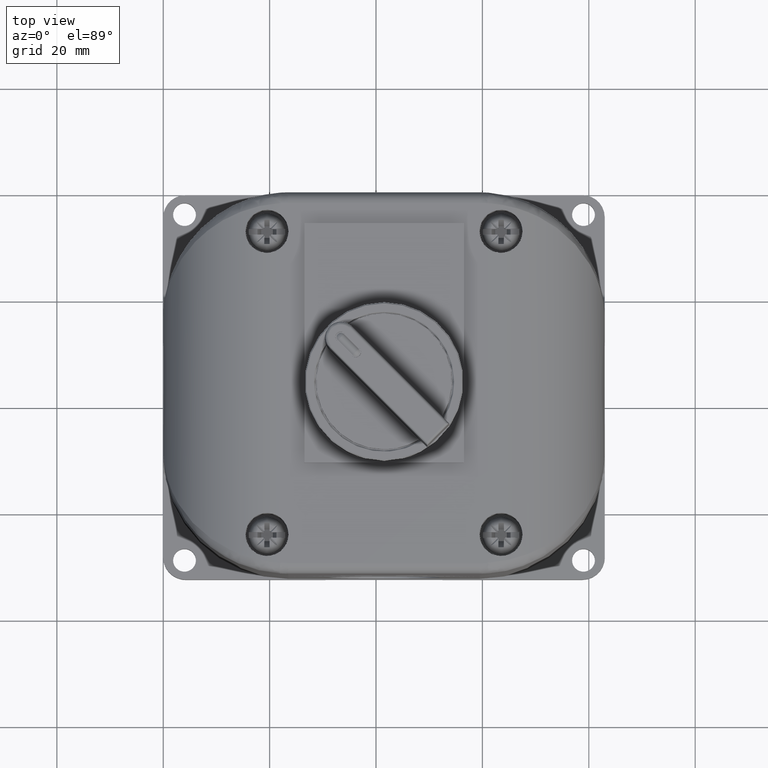
[diagram: clean part render]
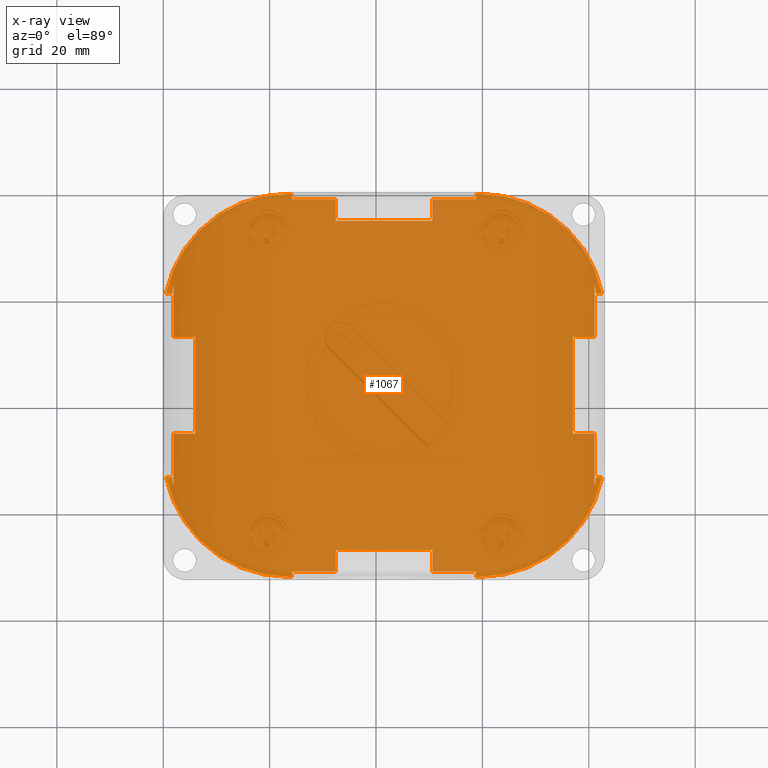
[diagram: x-ray — body ghosted, one internal face saturated and labeled with its STEP entity id]
A machine part, top view, then the same camera in x-ray: the body is ghosted and one INTERNAL B-rep face — a face not visible from any outside direction — is saturated and labeled: STEP entity #1067.
In plain terms, the highlighted planar face has unit normal (0, 0, 1).
Its self-contained STEP definition (entity closure, byte-faithful):
#241 = DIRECTION ( 'NONE',  ( -0.000000000000000000, -0.000000000000000000, 1.000000000000000000 ) ) ;
#265 = EDGE_CURVE ( 'NONE', #14849, #676, #5945, .T. ) ;
#280 = ORIENTED_EDGE ( 'NONE', *, *, #13927, .T. ) ;
#303 = CIRCLE ( 'NONE', #17322, 0.9251968503937009203 ) ;
#309 = VERTEX_POINT ( 'NONE', #18353 ) ;
#354 = DIRECTION ( 'NONE',  ( 1.000000000000000000, -0.000000000000000000, 2.265761274745220142E-15 ) ) ;
#360 = VERTEX_POINT ( 'NONE', #24075 ) ;
#429 = VERTEX_POINT ( 'NONE', #18829 ) ;
#462 = VERTEX_POINT ( 'NONE', #22338 ) ;
#497 = DIRECTION ( 'NONE',  ( -1.000000000000000000, -1.771632486103973270E-15, 0.000000000000000000 ) ) ;
#503 = DIRECTION ( 'NONE',  ( -0.9999999847036268319, -0.0001749078221056235376, 0.000000000000000000 ) ) ;
#676 = VERTEX_POINT ( 'NONE', #22674 ) ;
#812 = ORIENTED_EDGE ( 'NONE', *, *, #14826, .F. ) ;
#816 = B_SPLINE_CURVE_WITH_KNOTS ( 'NONE', 3,
 ( #3731, #16618, #7891, #19314 ),
 .UNSPECIFIED., .F., .F.,
 ( 4, 4 ),
 ( 3.469446951953614189E-18, 0.001584340929084238417 ),
 .UNSPECIFIED. ) ;
#886 = LINE ( 'NONE', #1139, #20478 ) ;
#986 = LINE ( 'NONE', #8546, #15512 ) ;
#1007 = B_SPLINE_CURVE_WITH_KNOTS ( 'NONE', 3,
 ( #23742, #14285, #3749, #12780 ),
 .UNSPECIFIED., .F., .F.,
 ( 4, 4 ),
 ( 6.938893903907228378E-18, 0.001584340929084234080 ),
 .UNSPECIFIED. ) ;
#1034 = B_SPLINE_CURVE_WITH_KNOTS ( 'NONE', 3,
 ( #13972, #12097, #8632, #12587 ),
 .UNSPECIFIED., .F., .F.,
 ( 4, 4 ),
 ( 6.938893903907228378E-18, 0.001584340472095101347 ),
 .UNSPECIFIED. ) ;
#1067 = ADVANCED_FACE ( 'NONE', ( #5300 ), #12834, .F. ) ;
#1139 = CARTESIAN_POINT ( 'NONE',  ( 3.200787401574803237, -1.423117759614849209, 0.9960629921259841479 ) ) ;
#1202 = EDGE_CURVE ( 'NONE', #676, #4535, #22670, .T. ) ;
#1296 = ORIENTED_EDGE ( 'NONE', *, *, #2157, .T. ) ;
#1378 = LINE ( 'NONE', #8802, #5220 ) ;
#1463 = ORIENTED_EDGE ( 'NONE', *, *, #1578, .F. ) ;
#1529 = EDGE_CURVE ( 'NONE', #22079, #19460, #21265, .T. ) ;
#1578 = EDGE_CURVE ( 'NONE', #21399, #5003, #1378, .T. ) ;
#1670 = CARTESIAN_POINT ( 'NONE',  ( 2.625236719564798094, -0.2046138226069755817, 0.9960629921259841479 ) ) ;
#2015 = VECTOR ( 'NONE', #503, 39.37007874015748143 ) ;
#2027 = VERTEX_POINT ( 'NONE', #4213 ) ;
#2157 = EDGE_CURVE ( 'NONE', #20765, #24545, #986, .T. ) ;
#2278 = DIRECTION ( 'NONE',  ( 0.000000000000000000, -1.000000000000000000, 0.000000000000000000 ) ) ;
#2510 = VECTOR ( 'NONE', #22545, 39.37007874015748143 ) ;
#2580 = LINE ( 'NONE', #4071, #13738 ) ;
#2742 = CARTESIAN_POINT ( 'NONE',  ( 0.06692913385826800010, -1.423117759614849209, 0.9960629921259841479 ) ) ;
#2768 = EDGE_CURVE ( 'NONE', #5003, #4767, #19916, .T. ) ;
#2823 = DIRECTION ( 'NONE',  ( 7.417671482642760352E-31, -7.417671482642762103E-31, 1.000000000000000000 ) ) ;
#2878 = DIRECTION ( 'NONE',  ( 1.000000000000000000, -0.000000000000000000, -0.000000000000000000 ) ) ;
#2970 = CARTESIAN_POINT ( 'NONE',  ( 0.9543165666018463833, -0.005794924969179654842, 0.9960629921259841479 ) ) ;
#3044 = EDGE_CURVE ( 'NONE', #15273, #15084, #14394, .T. ) ;
#3046 = ORIENTED_EDGE ( 'NONE', *, *, #12696, .T. ) ;
#3099 = LINE ( 'NONE', #10628, #5247 ) ;
#3235 = EDGE_CURVE ( 'NONE', #20068, #10290, #5927, .T. ) ;
#3237 = LINE ( 'NONE', #6820, #19533 ) ;
#3250 = DIRECTION ( 'NONE',  ( 1.000000000000000000, 0.000000000000000000, 0.000000000000000000 ) ) ;
#3276 = EDGE_CURVE ( 'NONE', #429, #23012, #17459, .T. ) ;
#3490 = CARTESIAN_POINT ( 'NONE',  ( 2.625236719564799426, -0.005794924969179654842, 0.9960629921259841479 ) ) ;
#3606 = DIRECTION ( 'NONE',  ( 0.000000000000000000, -1.000000000000000000, 0.000000000000000000 ) ) ;
#3731 = CARTESIAN_POINT ( 'NONE',  ( 0.07584489310691214237, -2.166819422409330897, 0.9960629919313432890 ) ) ;
#3734 = CARTESIAN_POINT ( 'NONE',  ( 3.191871686016665599, -0.7016700961253963253, 0.9960629921259841479 ) ) ;
#3749 = CARTESIAN_POINT ( 'NONE',  ( 3.200787401577076086, -0.7201040539439121924, 0.9960629921259841479 ) ) ;
#3766 = VERTEX_POINT ( 'NONE', #19854 ) ;
#3816 = CARTESIAN_POINT ( 'NONE',  ( 3.200787401574803237, -0.7435760585001600642, 0.9960629921259841479 ) ) ;
#3903 = CARTESIAN_POINT ( 'NONE',  ( 1.276999395476385413, 0.008294289568677525037, 0.9960629921259841479 ) ) ;
#3977 = ORIENTED_EDGE ( 'NONE', *, *, #7900, .T. ) ;
#4027 = LINE ( 'NONE', #1670, #22548 ) ;
#4042 = VERTEX_POINT ( 'NONE', #10865 ) ;
#4062 = LINE ( 'NONE', #23652, #14395 ) ;
#4071 = CARTESIAN_POINT ( 'NONE',  ( 0.06692913385826800010, -2.404560126622364624, 0.9960629921259841479 ) ) ;
#4076 = VECTOR ( 'NONE', #17206, 39.37007874015748143 ) ;
#4152 = DIRECTION ( 'NONE',  ( 1.000000000000000000, -0.000000000000000000, -2.265761274745220142E-15 ) ) ;
#4213 = CARTESIAN_POINT ( 'NONE',  ( 3.200787401574802793, -0.7409101436614397018, 0.9960629921259841479 ) ) ;
#4223 = VERTEX_POINT ( 'NONE', #21909 ) ;
#4293 = VERTEX_POINT ( 'NONE', #14777 ) ;
#4304 = DIRECTION ( 'NONE',  ( 0.000000000000000000, 0.000000000000000000, 1.000000000000000000 ) ) ;
#4326 = AXIS2_PLACEMENT_3D ( 'NONE', #8222, #19387, #14044 ) ;
#4368 = LINE ( 'NONE', #5960, #20909 ) ;
#4433 = ORIENTED_EDGE ( 'NONE', *, *, #20298, .T. ) ;
#4535 = VERTEX_POINT ( 'NONE', #8493 ) ;
#4731 = ORIENTED_EDGE ( 'NONE', *, *, #20592, .T. ) ;
#4767 = VERTEX_POINT ( 'NONE', #19915 ) ;
#4845 = ORIENTED_EDGE ( 'NONE', *, *, #10212, .F. ) ;
#4963 = ORIENTED_EDGE ( 'NONE', *, *, #23492, .F. ) ;
#5003 = VERTEX_POINT ( 'NONE', #18987 ) ;
#5220 = VECTOR ( 'NONE', #23837, 39.37007874015748143 ) ;
#5247 = VECTOR ( 'NONE', #14720, 39.37007874015748143 ) ;
#5300 = FACE_OUTER_BOUND ( 'NONE', #8691, .T. ) ;
#5309 = ORIENTED_EDGE ( 'NONE', *, *, #8095, .T. ) ;
#5495 = CARTESIAN_POINT ( 'NONE',  ( 2.313399968831224562, -2.800591761036391514, 0.9960629921259843700 ) ) ;
#5496 = ORIENTED_EDGE ( 'NONE', *, *, #13832, .T. ) ;
#5612 = EDGE_CURVE ( 'NONE', #22993, #7831, #22213, .T. ) ;
#5773 = DIRECTION ( 'NONE',  ( 1.000000000000000000, 0.000000000000000000, -0.000000000000000000 ) ) ;
#5910 = EDGE_CURVE ( 'NONE', #11784, #22993, #18951, .T. ) ;
#5927 = LINE ( 'NONE', #10028, #4076 ) ;
#5945 = LINE ( 'NONE', #6074, #2015 ) ;
#5960 = CARTESIAN_POINT ( 'NONE',  ( 0.9543165666018463833, -2.840440594260518647, 0.9960629921259840369 ) ) ;
#6017 = VERTEX_POINT ( 'NONE', #6047 ) ;
#6047 = CARTESIAN_POINT ( 'NONE',  ( 0.06692913385685726746, -0.7409102796260188528, 0.9960629919539645272 ) ) ;
#6074 = CARTESIAN_POINT ( 'NONE',  ( 2.020411243321577732, -2.800643007057055822, 0.9960629921259841479 ) ) ;
#6092 = VERTEX_POINT ( 'NONE', #15271 ) ;
#6196 = CARTESIAN_POINT ( 'NONE',  ( 0.06692913385826800010, -2.102659460729538132, 0.9960629921259841479 ) ) ;
#6341 = CARTESIAN_POINT ( 'NONE',  ( 0.9543165666018463833, -2.800829475357971443, 0.9960629921259840369 ) ) ;
#6586 = CARTESIAN_POINT ( 'NONE',  ( 3.191871686026317878, -2.166819274866170986, 0.9960629921260411024 ) ) ;
#6633 = DIRECTION ( 'NONE',  ( 0.000000000000000000, -1.000000000000000000, 0.000000000000000000 ) ) ;
#6770 = LINE ( 'NONE', #10243, #8850 ) ;
#6820 = CARTESIAN_POINT ( 'NONE',  ( 1.990717139956683646, 0.008294289568677797389, 0.9960629921259841479 ) ) ;
#6986 = VECTOR ( 'NONE', #18526, 39.37007874015748143 ) ;
#7068 = CARTESIAN_POINT ( 'NONE',  ( -0.05166161498367354693, -1.066258887374704756, 0.9960629921259841479 ) ) ;
#7208 = ORIENTED_EDGE ( 'NONE', *, *, #2768, .F. ) ;
#7271 = VECTOR ( 'NONE', #4152, 39.37007874015748143 ) ;
#7419 = ORIENTED_EDGE ( 'NONE', *, *, #16569, .F. ) ;
#7439 = CARTESIAN_POINT ( 'NONE',  ( 2.020044116535452350, -0.04564375819330684231, 0.9960629921259841479 ) ) ;
#7457 = CARTESIAN_POINT ( 'NONE',  ( 3.200787401574803237, -1.423117759614849209, 0.9960629921259841479 ) ) ;
#7556 = ORIENTED_EDGE ( 'NONE', *, *, #20612, .T. ) ;
#7586 = ORIENTED_EDGE ( 'NONE', *, *, #3044, .F. ) ;
#7608 = DIRECTION ( 'NONE',  ( 5.276725402210818083E-16, -1.000000000000000000, 0.000000000000000000 ) ) ;
#7684 = VERTEX_POINT ( 'NONE', #14444 ) ;
#7831 = VERTEX_POINT ( 'NONE', #24241 ) ;
#7852 = CARTESIAN_POINT ( 'NONE',  ( 0.07584484941640488864, -0.7016700961253963253, 0.9960629921259841479 ) ) ;
#7889 = CARTESIAN_POINT ( 'NONE',  ( 0.01918108836124199357, -2.102659460729538132, 0.9960629921259841479 ) ) ;
#7891 = CARTESIAN_POINT ( 'NONE',  ( 0.06692913385599472131, -2.126131465285785893, 0.9960629921259840369 ) ) ;
#7900 = EDGE_CURVE ( 'NONE', #14869, #22079, #10401, .T. ) ;
#7912 = DIRECTION ( 'NONE',  ( 1.000000000000000000, 0.000000000000000000, -0.000000000000000000 ) ) ;
#7974 = LINE ( 'NONE', #17523, #7271 ) ;
#8025 = VECTOR ( 'NONE', #7912, 39.37007874015748143 ) ;
#8095 = EDGE_CURVE ( 'NONE', #23012, #19260, #11002, .T. ) ;
#8132 = CARTESIAN_POINT ( 'NONE',  ( 2.625236719564799426, -2.404560126622364624, 0.9960629921259841479 ) ) ;
#8175 = CARTESIAN_POINT ( 'NONE',  ( 3.200787401574803237, -2.102659460729538132, 0.9960629921259841479 ) ) ;
#8196 = VECTOR ( 'NONE', #14764, 39.37007874015748143 ) ;
#8217 = ORIENTED_EDGE ( 'NONE', *, *, #11937, .F. ) ;
#8222 = CARTESIAN_POINT ( 'NONE',  ( 2.342519685039369914, -1.915243743866817727, 0.9960629921259841479 ) ) ;
#8493 = CARTESIAN_POINT ( 'NONE',  ( 1.990717139956684534, -2.641621696622722837, 0.9960629921259841479 ) ) ;
#8546 = CARTESIAN_POINT ( 'NONE',  ( 2.020044116535452350, -0.04564375819330684231, 0.9960629921259841479 ) ) ;
#8632 = CARTESIAN_POINT ( 'NONE',  ( 3.197780630896867482, -2.146869901690826143, 0.9960629921259841479 ) ) ;
#8641 = ORIENTED_EDGE ( 'NONE', *, *, #22566, .F. ) ;
#8684 = DIRECTION ( 'NONE',  ( 0.000000000000000000, -1.000000000000000000, -0.000000000000000000 ) ) ;
#8691 = EDGE_LOOP ( 'NONE', ( #17440, #4731, #21689, #9823, #1296, #18522, #11255, #7208, #1463, #10650, #8641, #3046, #19913, #4433, #16600, #5309, #16035, #18032, #24127, #4845, #16162, #21677, #18154, #19665, #10948, #3977, #13627, #9661, #17870, #14380, #812, #7419, #8217, #5496, #7556, #23816, #18219, #19839, #9812, #280, #7586, #18351, #20517, #4963 ) ) ;
#8705 = CARTESIAN_POINT ( 'NONE',  ( 0.06692912070187173601, -0.7201044626302380847, 0.9960629921259841479 ) ) ;
#8802 = CARTESIAN_POINT ( 'NONE',  ( 3.267716535433071279, -0.7435760585001600642, 0.9960629921259841479 ) ) ;
#8818 = VECTOR ( 'NONE', #12877, 39.37007874015748143 ) ;
#8825 = VECTOR ( 'NONE', #16357, 39.37007874015748143 ) ;
#8850 = VECTOR ( 'NONE', #10611, 39.37007874015748143 ) ;
#8900 = VECTOR ( 'NONE', #22607, 39.37007874015748143 ) ;
#8912 = DIRECTION ( 'NONE',  ( 0.000000000000000000, -1.000000000000000000, 0.000000000000000000 ) ) ;
#9047 = LINE ( 'NONE', #20361, #8818 ) ;
#9281 = DIRECTION ( 'NONE',  ( -0.000000000000000000, 1.000000000000000000, 0.000000000000000000 ) ) ;
#9486 = DIRECTION ( 'NONE',  ( -0.000000000000000000, 0.000000000000000000, 1.000000000000000000 ) ) ;
#9583 = CARTESIAN_POINT ( 'NONE',  ( 2.020411243321577732, -2.800643007057055822, 0.9960629921259841479 ) ) ;
#9661 = ORIENTED_EDGE ( 'NONE', *, *, #16947, .F. ) ;
#9705 = DIRECTION ( 'NONE',  ( -0.9999999847036268319, -0.0001749078221056235376, 0.000000000000000000 ) ) ;
#9812 = ORIENTED_EDGE ( 'NONE', *, *, #20709, .F. ) ;
#9823 = ORIENTED_EDGE ( 'NONE', *, *, #19743, .T. ) ;
#9878 = CARTESIAN_POINT ( 'NONE',  ( 1.276999395476385857, -0.2046138226069763311, 0.9960629921259841479 ) ) ;
#10028 = CARTESIAN_POINT ( 'NONE',  ( 2.625236719564799426, -0.005794924969179654842, 0.9960629921259841479 ) ) ;
#10031 = EDGE_CURVE ( 'NONE', #12155, #462, #4027, .T. ) ;
#10212 = EDGE_CURVE ( 'NONE', #6092, #15078, #24143, .T. ) ;
#10243 = CARTESIAN_POINT ( 'NONE',  ( 3.267716535433071279, -2.102659460729538132, 0.9960629921259841479 ) ) ;
#10290 = VERTEX_POINT ( 'NONE', #21880 ) ;
#10401 = LINE ( 'NONE', #20997, #11896 ) ;
#10611 = DIRECTION ( 'NONE',  ( -1.000000000000000000, -0.000000000000000000, -0.000000000000000000 ) ) ;
#10628 = CARTESIAN_POINT ( 'NONE',  ( 0.9543165666018463833, -0.005794924969179654842, 0.9960629921259840369 ) ) ;
#10650 = ORIENTED_EDGE ( 'NONE', *, *, #12598, .F. ) ;
#10773 = EDGE_CURVE ( 'NONE', #4293, #24545, #14874, .T. ) ;
#10785 = VECTOR ( 'NONE', #8912, 39.37007874015748143 ) ;
#10865 = CARTESIAN_POINT ( 'NONE',  ( 2.313399968831224562, -2.840440594260518647, 0.9960629921259841479 ) ) ;
#10947 = CARTESIAN_POINT ( 'NONE',  ( 1.276999395476385413, -0.04564375819330684231, 0.9960629921259841479 ) ) ;
#10948 = ORIENTED_EDGE ( 'NONE', *, *, #24186, .T. ) ;
#10976 = DIRECTION ( 'NONE',  ( -1.000000000000000000, 0.000000000000000000, 0.000000000000000000 ) ) ;
#11002 = LINE ( 'NONE', #24305, #10785 ) ;
#11018 = CARTESIAN_POINT ( 'NONE',  ( 2.313399968831224562, -2.404560126622364624, 0.9960629921259841479 ) ) ;
#11255 = ORIENTED_EDGE ( 'NONE', *, *, #11976, .F. ) ;
#11269 = CARTESIAN_POINT ( 'NONE',  ( 3.031496062992127261, -1.066258887374705200, 0.9960629921259841479 ) ) ;
#11337 = DIRECTION ( 'NONE',  ( -0.000000000000000000, 1.000000000000000000, -0.000000000000000000 ) ) ;
#11408 = VERTEX_POINT ( 'NONE', #13306 ) ;
#11553 = LINE ( 'NONE', #3903, #13599 ) ;
#11606 = CIRCLE ( 'NONE', #24324, 0.9251968503937008093 ) ;
#11619 = CARTESIAN_POINT ( 'NONE',  ( 2.625236719564799426, -2.840440594260518647, 0.9960629921259841479 ) ) ;
#11622 = CARTESIAN_POINT ( 'NONE',  ( 3.319378150416744777, -1.779976631854993663, 0.9960629921259841479 ) ) ;
#11784 = VERTEX_POINT ( 'NONE', #20616 ) ;
#11896 = VECTOR ( 'NONE', #2278, 39.37007874015748143 ) ;
#11937 = EDGE_CURVE ( 'NONE', #7684, #360, #816, .T. ) ;
#11976 = EDGE_CURVE ( 'NONE', #4767, #4293, #14878, .T. ) ;
#12049 = CARTESIAN_POINT ( 'NONE',  ( 1.990717139956683646, -0.04564375819330684231, 0.9960629921259841479 ) ) ;
#12097 = CARTESIAN_POINT ( 'NONE',  ( 3.200787414731199654, -2.126131056599460667, 0.9960629921259841479 ) ) ;
#12155 = VERTEX_POINT ( 'NONE', #9878 ) ;
#12274 = VECTOR ( 'NONE', #20853, 39.37007874015748143 ) ;
#12337 = CARTESIAN_POINT ( 'NONE',  ( 3.200787401576214553, -2.105325239603679233, 0.9960629919539645272 ) ) ;
#12392 = CARTESIAN_POINT ( 'NONE',  ( 0.000000000000000000, -0.7435760585001600642, 0.9960629921259841479 ) ) ;
#12397 = CARTESIAN_POINT ( 'NONE',  ( 2.313399968831224562, -2.840440594260518647, 0.9960629921259841479 ) ) ;
#12544 = CARTESIAN_POINT ( 'NONE',  ( 0.06692913385685726746, -0.7409102796260188528, 0.9960629919539645272 ) ) ;
#12587 = CARTESIAN_POINT ( 'NONE',  ( 3.191871686026317878, -2.166819274866170986, 0.9960629921260411024 ) ) ;
#12598 = EDGE_CURVE ( 'NONE', #2027, #21399, #886, .T. ) ;
#12696 = EDGE_CURVE ( 'NONE', #23277, #23983, #17094, .T. ) ;
#12746 = DIRECTION ( 'NONE',  ( -5.276725402210818083E-16, 1.000000000000000000, -0.000000000000000000 ) ) ;
#12751 = AXIS2_PLACEMENT_3D ( 'NONE', #12956, #9486, #10976 ) ;
#12780 = CARTESIAN_POINT ( 'NONE',  ( 3.200787401574802793, -0.7409101436614397018, 0.9960629921259841479 ) ) ;
#12834 = PLANE ( 'NONE',  #14698 ) ;
#12858 = EDGE_CURVE ( 'NONE', #10290, #15273, #11606, .T. ) ;
#12877 = DIRECTION ( 'NONE',  ( -1.000000000000000000, 0.000000000000000000, 0.000000000000000000 ) ) ;
#12920 = VECTOR ( 'NONE', #3606, 39.37007874015748143 ) ;
#12956 = CARTESIAN_POINT ( 'NONE',  ( 2.342519685039369914, -0.9309917753628805803, 0.9960629921259841479 ) ) ;
#12961 = VECTOR ( 'NONE', #14020, 39.37007874015748143 ) ;
#13306 = CARTESIAN_POINT ( 'NONE',  ( 0.9543165666018463833, -0.04564375819330684231, 0.9960629921259843700 ) ) ;
#13347 = EDGE_CURVE ( 'NONE', #13401, #19260, #1034, .T. ) ;
#13398 = EDGE_CURVE ( 'NONE', #15078, #18632, #6770, .T. ) ;
#13401 = VERTEX_POINT ( 'NONE', #12337 ) ;
#13599 = VECTOR ( 'NONE', #7608, 39.37007874015748143 ) ;
#13627 = ORIENTED_EDGE ( 'NONE', *, *, #1529, .T. ) ;
#13738 = VECTOR ( 'NONE', #17311, 39.37007874015748143 ) ;
#13747 = VERTEX_POINT ( 'NONE', #11269 ) ;
#13786 = CARTESIAN_POINT ( 'NONE',  ( 1.276999395476386301, -2.641621696622722837, 0.9960629921259841479 ) ) ;
#13832 = EDGE_CURVE ( 'NONE', #7684, #3766, #20489, .T. ) ;
#13920 = LINE ( 'NONE', #7852, #16804 ) ;
#13927 = EDGE_CURVE ( 'NONE', #6017, #15084, #14006, .T. ) ;
#13972 = CARTESIAN_POINT ( 'NONE',  ( 3.200787401576214553, -2.105325239603679233, 0.9960629919539645272 ) ) ;
#13990 = CARTESIAN_POINT ( 'NONE',  ( 3.191871642326158831, -0.6794160968203676321, 0.9960629919313434000 ) ) ;
#14006 = LINE ( 'NONE', #2742, #22622 ) ;
#14020 = DIRECTION ( 'NONE',  ( -0.000000000000000000, -1.000000000000000000, -0.000000000000000000 ) ) ;
#14044 = DIRECTION ( 'NONE',  ( -1.000000000000000000, 0.000000000000000000, 0.000000000000000000 ) ) ;
#14200 = EDGE_CURVE ( 'NONE', #23983, #13747, #23705, .T. ) ;
#14243 = CARTESIAN_POINT ( 'NONE',  ( 3.319378150416744777, -1.066258887374704756, 0.9960629921259841479 ) ) ;
#14278 = CARTESIAN_POINT ( 'NONE',  ( 0.06692913385826800010, -0.7435760585001600642, 0.9960629921259841479 ) ) ;
#14285 = CARTESIAN_POINT ( 'NONE',  ( 3.197780527425256203, -0.6993652157853464946, 0.9960629921259841479 ) ) ;
#14380 = ORIENTED_EDGE ( 'NONE', *, *, #17492, .F. ) ;
#14394 = LINE ( 'NONE', #12392, #19104 ) ;
#14395 = VECTOR ( 'NONE', #6633, 39.37007874015748143 ) ;
#14444 = CARTESIAN_POINT ( 'NONE',  ( 0.07584489310691214237, -2.166819422409330897, 0.9960629919313432890 ) ) ;
#14698 = AXIS2_PLACEMENT_3D ( 'NONE', #8132, #4304, #5773 ) ;
#14720 = DIRECTION ( 'NONE',  ( -0.000000000000000000, 1.000000000000000000, -0.000000000000000000 ) ) ;
#14752 = CARTESIAN_POINT ( 'NONE',  ( 3.191871686016665599, -1.779976631854993663, 0.9960629921259840369 ) ) ;
#14764 = DIRECTION ( 'NONE',  ( -1.000000000000000000, -0.000000000000000000, 0.000000000000000000 ) ) ;
#14777 = CARTESIAN_POINT ( 'NONE',  ( 2.313399968831224562, -0.005794924969179654842, 0.9960629921259841479 ) ) ;
#14803 = VERTEX_POINT ( 'NONE', #10947 ) ;
#14826 = EDGE_CURVE ( 'NONE', #19663, #24467, #18767, .T. ) ;
#14849 = VERTEX_POINT ( 'NONE', #5495 ) ;
#14869 = VERTEX_POINT ( 'NONE', #13786 ) ;
#14874 = LINE ( 'NONE', #11018, #19371 ) ;
#14878 = LINE ( 'NONE', #3490, #8196 ) ;
#14945 = LINE ( 'NONE', #20799, #2510 ) ;
#15067 = VECTOR ( 'NONE', #11337, 39.37007874015748143 ) ;
#15078 = VERTEX_POINT ( 'NONE', #15885 ) ;
#15084 = VERTEX_POINT ( 'NONE', #14278 ) ;
#15225 = LINE ( 'NONE', #11619, #8025 ) ;
#15271 = CARTESIAN_POINT ( 'NONE',  ( 2.342519685039370803, -2.840440594260518647, 0.9960629921259841479 ) ) ;
#15273 = VERTEX_POINT ( 'NONE', #22062 ) ;
#15282 = DIRECTION ( 'NONE',  ( 1.000000000000000000, 5.276725402210818083E-16, -0.000000000000000000 ) ) ;
#15409 = DIRECTION ( 'NONE',  ( 0.000000000000000000, 1.000000000000000000, 0.000000000000000000 ) ) ;
#15505 = DIRECTION ( 'NONE',  ( -0.000000000000000000, 1.000000000000000000, -0.000000000000000000 ) ) ;
#15512 = VECTOR ( 'NONE', #16106, 39.37007874015748143 ) ;
#15544 = VECTOR ( 'NONE', #9281, 39.37007874015748143 ) ;
#15615 = CARTESIAN_POINT ( 'NONE',  ( 0.9251968503937006982, -0.9309917753628805803, 0.9960629921259841479 ) ) ;
#15885 = CARTESIAN_POINT ( 'NONE',  ( 3.248535447071828397, -2.102659460729538576, 0.9960629921259841479 ) ) ;
#15895 = CARTESIAN_POINT ( 'NONE',  ( 0.06993590453620271430, -0.6993656175388723861, 0.9960629921259841479 ) ) ;
#15981 = DIRECTION ( 'NONE',  ( -1.000000000000000000, 0.000000000000000000, -2.265761274745220142E-15 ) ) ;
#16035 = ORIENTED_EDGE ( 'NONE', *, *, #13347, .F. ) ;
#16106 = DIRECTION ( 'NONE',  ( 1.000000000000000000, 0.000000000000000000, 0.000000000000000000 ) ) ;
#16127 = LINE ( 'NONE', #12397, #12961 ) ;
#16162 = ORIENTED_EDGE ( 'NONE', *, *, #19366, .F. ) ;
#16357 = DIRECTION ( 'NONE',  ( -1.000000000000000000, 0.000000000000000000, 2.265761274745220142E-15 ) ) ;
#16527 = CARTESIAN_POINT ( 'NONE',  ( 1.276999395476386301, -2.800773035606278327, 0.9960629921259841479 ) ) ;
#16569 = EDGE_CURVE ( 'NONE', #360, #19663, #2580, .T. ) ;
#16600 = ORIENTED_EDGE ( 'NONE', *, *, #3276, .T. ) ;
#16618 = CARTESIAN_POINT ( 'NONE',  ( 0.06993600800781483995, -2.146870303444351702, 0.9960629921259841479 ) ) ;
#16804 = VECTOR ( 'NONE', #15409, 39.37007874015748143 ) ;
#16871 = LINE ( 'NONE', #7457, #8900 ) ;
#16947 = EDGE_CURVE ( 'NONE', #4223, #19460, #4368, .T. ) ;
#17085 = EDGE_CURVE ( 'NONE', #14849, #4042, #16127, .T. ) ;
#17094 = LINE ( 'NONE', #3734, #12920 ) ;
#17200 = EDGE_CURVE ( 'NONE', #11408, #14803, #18599, .T. ) ;
#17206 = DIRECTION ( 'NONE',  ( -1.000000000000000000, -0.000000000000000000, 0.000000000000000000 ) ) ;
#17311 = DIRECTION ( 'NONE',  ( -0.000000000000000000, 1.000000000000000000, 0.000000000000000000 ) ) ;
#17322 = AXIS2_PLACEMENT_3D ( 'NONE', #18183, #2823, #18058 ) ;
#17440 = ORIENTED_EDGE ( 'NONE', *, *, #17200, .T. ) ;
#17459 = LINE ( 'NONE', #11622, #22247 ) ;
#17492 = EDGE_CURVE ( 'NONE', #24467, #19402, #303, .T. ) ;
#17523 = CARTESIAN_POINT ( 'NONE',  ( -0.05166161498367354693, -1.779976631854993663, 0.9960629921259841479 ) ) ;
#17870 = ORIENTED_EDGE ( 'NONE', *, *, #23181, .F. ) ;
#17875 = VECTOR ( 'NONE', #9705, 39.37007874015748143 ) ;
#18032 = ORIENTED_EDGE ( 'NONE', *, *, #22683, .F. ) ;
#18058 = DIRECTION ( 'NONE',  ( 8.858162430519865364E-16, 1.000000000000000000, 0.000000000000000000 ) ) ;
#18154 = ORIENTED_EDGE ( 'NONE', *, *, #265, .T. ) ;
#18183 = CARTESIAN_POINT ( 'NONE',  ( 0.9251968503937006982, -1.915243743866817727, 0.9960629921259841479 ) ) ;
#18219 = ORIENTED_EDGE ( 'NONE', *, *, #5612, .T. ) ;
#18351 = ORIENTED_EDGE ( 'NONE', *, *, #12858, .F. ) ;
#18353 = CARTESIAN_POINT ( 'NONE',  ( 0.07584484940675272069, -0.6794162443635270998, 0.9960629921260411024 ) ) ;
#18522 = ORIENTED_EDGE ( 'NONE', *, *, #10773, .F. ) ;
#18526 = DIRECTION ( 'NONE',  ( -1.000000000000000000, -0.000000000000000000, 0.000000000000000000 ) ) ;
#18599 = LINE ( 'NONE', #7439, #19726 ) ;
#18612 = CARTESIAN_POINT ( 'NONE',  ( 0.07584484941640488864, -0.7016700961253963253, 0.9960629921259841479 ) ) ;
#18632 = VERTEX_POINT ( 'NONE', #8175 ) ;
#18651 = CARTESIAN_POINT ( 'NONE',  ( 3.191871686016665599, -1.066258887374704978, 0.9960629921259841479 ) ) ;
#18704 = CARTESIAN_POINT ( 'NONE',  ( 0.2362204724409442680, -2.404560126622364624, 0.9960629921259841479 ) ) ;
#18767 = LINE ( 'NONE', #24246, #6986 ) ;
#18829 = CARTESIAN_POINT ( 'NONE',  ( 3.031496062992127261, -1.779976631854993441, 0.9960629921259841479 ) ) ;
#18841 = VECTOR ( 'NONE', #15981, 39.37007874015748143 ) ;
#18924 = CARTESIAN_POINT ( 'NONE',  ( 1.990717139956684534, -2.854529808798376589, 0.9960629921259841479 ) ) ;
#18951 = LINE ( 'NONE', #18704, #15544 ) ;
#18987 = CARTESIAN_POINT ( 'NONE',  ( 3.248535447071828397, -0.7435760585001600642, 0.9960629921259841479 ) ) ;
#19104 = VECTOR ( 'NONE', #2878, 39.37007874015748143 ) ;
#19260 = VERTEX_POINT ( 'NONE', #6586 ) ;
#19314 = CARTESIAN_POINT ( 'NONE',  ( 0.06692913385826854133, -2.105325375568258828, 0.9960629921259841479 ) ) ;
#19366 = EDGE_CURVE ( 'NONE', #4042, #6092, #14945, .T. ) ;
#19371 = VECTOR ( 'NONE', #8684, 39.37007874015748143 ) ;
#19387 = DIRECTION ( 'NONE',  ( 0.000000000000000000, -0.000000000000000000, 1.000000000000000000 ) ) ;
#19402 = VERTEX_POINT ( 'NONE', #24043 ) ;
#19433 = CARTESIAN_POINT ( 'NONE',  ( 2.313399968831224562, -0.04564375819330684231, 0.9960629921259843700 ) ) ;
#19460 = VERTEX_POINT ( 'NONE', #6341 ) ;
#19474 = DIRECTION ( 'NONE',  ( -0.000000000000000000, -1.000000000000000000, 0.000000000000000000 ) ) ;
#19533 = VECTOR ( 'NONE', #12746, 39.37007874015748143 ) ;
#19663 = VERTEX_POINT ( 'NONE', #6196 ) ;
#19665 = ORIENTED_EDGE ( 'NONE', *, *, #1202, .T. ) ;
#19726 = VECTOR ( 'NONE', #3250, 39.37007874015748143 ) ;
#19743 = EDGE_CURVE ( 'NONE', #462, #20765, #3237, .T. ) ;
#19839 = ORIENTED_EDGE ( 'NONE', *, *, #22013, .T. ) ;
#19854 = CARTESIAN_POINT ( 'NONE',  ( 0.07584484941640488864, -1.779976631854993663, 0.9960629921259841479 ) ) ;
#19888 = CARTESIAN_POINT ( 'NONE',  ( 0.07584484940675272069, -0.6794162443635270998, 0.9960629921260411024 ) ) ;
#19913 = ORIENTED_EDGE ( 'NONE', *, *, #14200, .T. ) ;
#19915 = CARTESIAN_POINT ( 'NONE',  ( 2.342519685039369914, -0.005794924969179654842, 0.9960629921259841479 ) ) ;
#19916 = CIRCLE ( 'NONE', #12751, 0.9251968503937011423 ) ;
#20068 = VERTEX_POINT ( 'NONE', #2970 ) ;
#20298 = EDGE_CURVE ( 'NONE', #13747, #429, #4062, .T. ) ;
#20361 = CARTESIAN_POINT ( 'NONE',  ( 2.625236719564799426, -2.641621696622722837, 0.9960629921259841479 ) ) ;
#20478 = VECTOR ( 'NONE', #22231, 39.37007874015748143 ) ;
#20489 = LINE ( 'NONE', #18612, #12274 ) ;
#20517 = ORIENTED_EDGE ( 'NONE', *, *, #3235, .F. ) ;
#20592 = EDGE_CURVE ( 'NONE', #14803, #12155, #11553, .T. ) ;
#20612 = EDGE_CURVE ( 'NONE', #3766, #11784, #7974, .T. ) ;
#20616 = CARTESIAN_POINT ( 'NONE',  ( 0.2362204724409442680, -1.779976631854993441, 0.9960629921259841479 ) ) ;
#20709 = EDGE_CURVE ( 'NONE', #6017, #309, #23228, .T. ) ;
#20765 = VERTEX_POINT ( 'NONE', #12049 ) ;
#20799 = CARTESIAN_POINT ( 'NONE',  ( 2.625236719564799426, -2.840440594260518647, 0.9960629921259841479 ) ) ;
#20853 = DIRECTION ( 'NONE',  ( 0.000000000000000000, 1.000000000000000000, 0.000000000000000000 ) ) ;
#20909 = VECTOR ( 'NONE', #15505, 39.37007874015748143 ) ;
#20997 = CARTESIAN_POINT ( 'NONE',  ( 1.276999395476386301, -2.854529808798376589, 0.9960629921259841479 ) ) ;
#21265 = LINE ( 'NONE', #9583, #17875 ) ;
#21399 = VERTEX_POINT ( 'NONE', #3816 ) ;
#21677 = ORIENTED_EDGE ( 'NONE', *, *, #17085, .F. ) ;
#21689 = ORIENTED_EDGE ( 'NONE', *, *, #10031, .T. ) ;
#21880 = CARTESIAN_POINT ( 'NONE',  ( 0.9251968503937001431, -0.005794924969179654842, 0.9960629921259841479 ) ) ;
#21909 = CARTESIAN_POINT ( 'NONE',  ( 0.9543165666018463833, -2.840440594260518647, 0.9960629921259841479 ) ) ;
#22013 = EDGE_CURVE ( 'NONE', #7831, #309, #13920, .T. ) ;
#22062 = CARTESIAN_POINT ( 'NONE',  ( 0.01918108836124199357, -0.7435760585001599532, 0.9960629921259841479 ) ) ;
#22079 = VERTEX_POINT ( 'NONE', #16527 ) ;
#22213 = LINE ( 'NONE', #7068, #8825 ) ;
#22231 = DIRECTION ( 'NONE',  ( -0.000000000000000000, -1.000000000000000000, 0.000000000000000000 ) ) ;
#22247 = VECTOR ( 'NONE', #354, 39.37007874015748143 ) ;
#22338 = CARTESIAN_POINT ( 'NONE',  ( 1.990717139956684090, -0.2046138226069759147, 0.9960629921259841479 ) ) ;
#22545 = DIRECTION ( 'NONE',  ( 1.000000000000000000, 0.000000000000000000, -0.000000000000000000 ) ) ;
#22548 = VECTOR ( 'NONE', #15282, 39.37007874015748143 ) ;
#22566 = EDGE_CURVE ( 'NONE', #23277, #2027, #1007, .T. ) ;
#22607 = DIRECTION ( 'NONE',  ( -0.000000000000000000, -1.000000000000000000, 0.000000000000000000 ) ) ;
#22622 = VECTOR ( 'NONE', #19474, 39.37007874015748143 ) ;
#22670 = LINE ( 'NONE', #18924, #15067 ) ;
#22674 = CARTESIAN_POINT ( 'NONE',  ( 1.990717139956684534, -2.800648200788083741, 0.9960629921259841479 ) ) ;
#22683 = EDGE_CURVE ( 'NONE', #18632, #13401, #16871, .T. ) ;
#22993 = VERTEX_POINT ( 'NONE', #24197 ) ;
#23012 = VERTEX_POINT ( 'NONE', #14752 ) ;
#23181 = EDGE_CURVE ( 'NONE', #19402, #4223, #15225, .T. ) ;
#23228 = B_SPLINE_CURVE_WITH_KNOTS ( 'NONE', 3,
 ( #12544, #8705, #15895, #19888 ),
 .UNSPECIFIED., .F., .F.,
 ( 4, 4 ),
 ( 0.000000000000000000, 0.001584340472095098094 ),
 .UNSPECIFIED. ) ;
#23277 = VERTEX_POINT ( 'NONE', #13990 ) ;
#23492 = EDGE_CURVE ( 'NONE', #11408, #20068, #3099, .T. ) ;
#23652 = CARTESIAN_POINT ( 'NONE',  ( 3.031496062992126372, -2.404560126622364624, 0.9960629921259841479 ) ) ;
#23705 = LINE ( 'NONE', #14243, #18841 ) ;
#23742 = CARTESIAN_POINT ( 'NONE',  ( 3.191871642326158831, -0.6794160968203676321, 0.9960629919313434000 ) ) ;
#23816 = ORIENTED_EDGE ( 'NONE', *, *, #5910, .T. ) ;
#23837 = DIRECTION ( 'NONE',  ( 1.000000000000000000, -0.000000000000000000, -0.000000000000000000 ) ) ;
#23983 = VERTEX_POINT ( 'NONE', #18651 ) ;
#24043 = CARTESIAN_POINT ( 'NONE',  ( 0.9251968503937009203, -2.840440594260518647, 0.9960629921259841479 ) ) ;
#24075 = CARTESIAN_POINT ( 'NONE',  ( 0.06692913385826854133, -2.105325375568258828, 0.9960629921259841479 ) ) ;
#24127 = ORIENTED_EDGE ( 'NONE', *, *, #13398, .F. ) ;
#24143 = CIRCLE ( 'NONE', #4326, 0.9251968503937008093 ) ;
#24186 = EDGE_CURVE ( 'NONE', #4535, #14869, #9047, .T. ) ;
#24197 = CARTESIAN_POINT ( 'NONE',  ( 0.2362204724409442680, -1.066258887374705200, 0.9960629921259841479 ) ) ;
#24241 = CARTESIAN_POINT ( 'NONE',  ( 0.07584484941640488864, -1.066258887374704756, 0.9960629921259840369 ) ) ;
#24246 = CARTESIAN_POINT ( 'NONE',  ( 2.625236719564799426, -2.102659460729538132, 0.9960629921259841479 ) ) ;
#24305 = CARTESIAN_POINT ( 'NONE',  ( 3.191871686016665599, -0.7016700961253963253, 0.9960629921259841479 ) ) ;
#24324 = AXIS2_PLACEMENT_3D ( 'NONE', #15615, #241, #497 ) ;
#24467 = VERTEX_POINT ( 'NONE', #7889 ) ;
#24545 = VERTEX_POINT ( 'NONE', #19433 ) ;